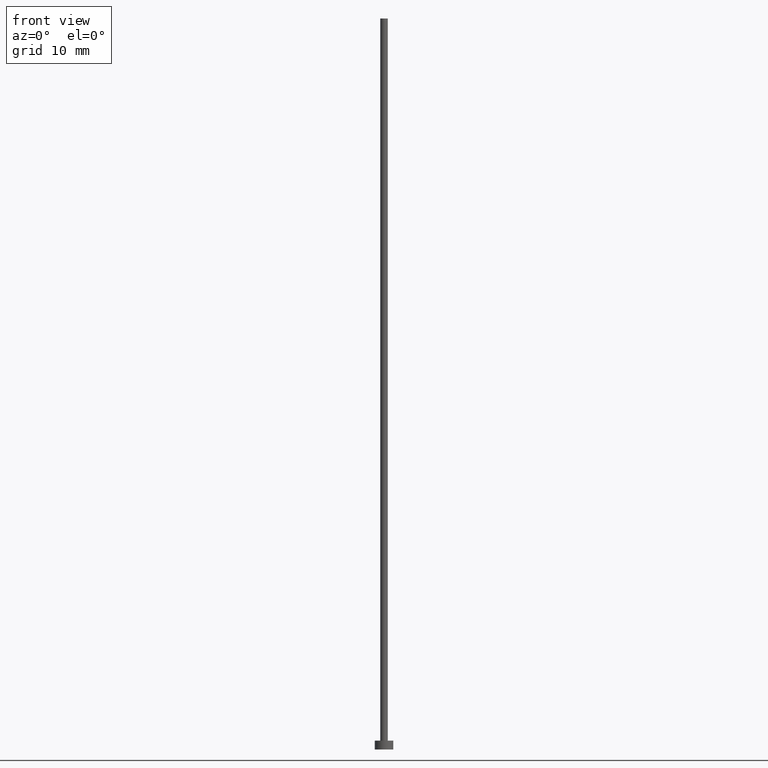
[diagram: clean part render]
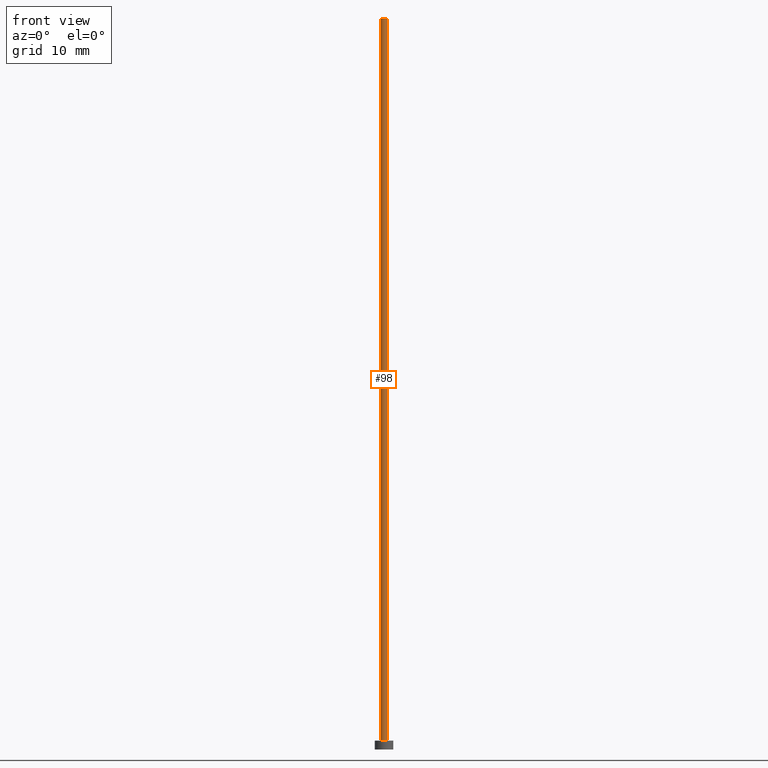
[diagram: same view with one face highlighted and labeled with its STEP entity id]
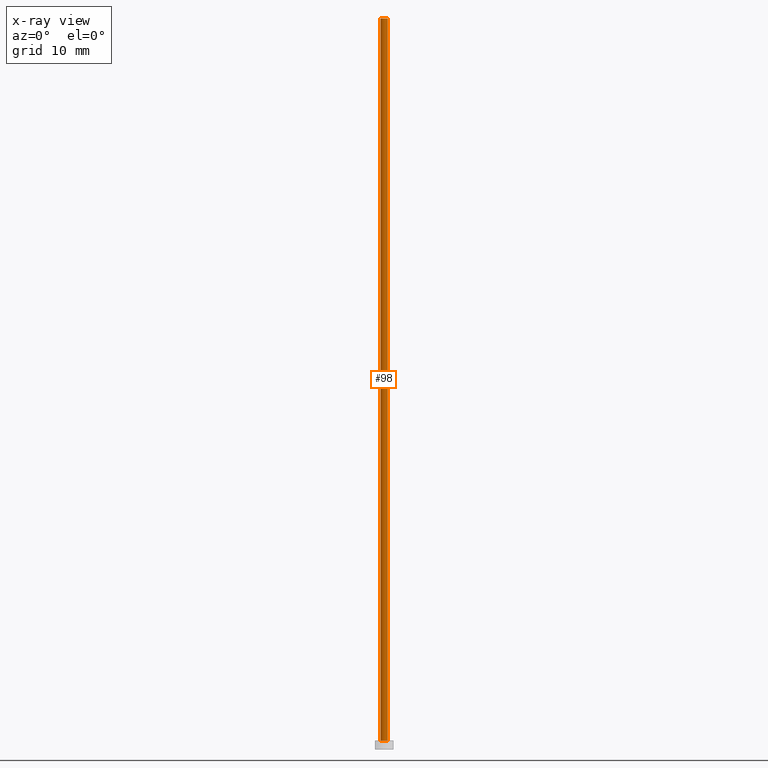
[diagram: x-ray of the same camera — body ghosted, the highlighted face saturated]
A machine part, front view. The second image highlights one B-rep face of the part: STEP entity #98.
The next image is the same camera in x-ray: the body ghosted, the highlighted face saturated — about 0% of this face is hidden behind the body in this view.
In plain terms, the highlighted cylindrical surface (edge-blend (fillet) strip) has radius 0.5 mm, axis along (-0, -0, -1).
Its self-contained STEP definition (entity closure, byte-faithful):
#8 = CARTESIAN_POINT ( 'NONE',  ( 0.000000000000000000, 0.000000000000000000, 99.00000000000000000 ) ) ;
#12 = CARTESIAN_POINT ( 'NONE',  ( 0.5000000000000000000, 6.123233995736766036E-17, 99.00000000000000000 ) ) ;
#30 = EDGE_LOOP ( 'NONE', ( #61, #32, #123, #64 ) ) ;
#31 = VECTOR ( 'NONE', #210, 1000.000000000000000 ) ;
#32 = ORIENTED_EDGE ( 'NONE', *, *, #73, .F. ) ;
#36 = DIRECTION ( 'NONE',  ( 0.000000000000000000, 0.000000000000000000, 1.000000000000000000 ) ) ;
#47 = FACE_OUTER_BOUND ( 'NONE', #30, .T. ) ;
#52 = VECTOR ( 'NONE', #185, 1000.000000000000000 ) ;
#56 = CIRCLE ( 'NONE', #142, 0.5000000000000000000 ) ;
#58 = VERTEX_POINT ( 'NONE', #177 ) ;
#61 = ORIENTED_EDGE ( 'NONE', *, *, #213, .F. ) ;
#64 = ORIENTED_EDGE ( 'NONE', *, *, #242, .T. ) ;
#67 = VERTEX_POINT ( 'NONE', #12 ) ;
#68 = VERTEX_POINT ( 'NONE', #141 ) ;
#73 = EDGE_CURVE ( 'NONE', #58, #67, #56, .T. ) ;
#74 = CARTESIAN_POINT ( 'NONE',  ( 0.5000000000000000000, 6.123233995736766036E-17, 99.00000000000000000 ) ) ;
#86 = DIRECTION ( 'NONE',  ( -0.000000000000000000, -0.000000000000000000, -1.000000000000000000 ) ) ;
#88 = DIRECTION ( 'NONE',  ( -1.000000000000000000, 0.000000000000000000, 0.000000000000000000 ) ) ;
#90 = AXIS2_PLACEMENT_3D ( 'NONE', #180, #86, #88 ) ;
#91 = DIRECTION ( 'NONE',  ( 1.000000000000000000, 0.000000000000000000, 0.000000000000000000 ) ) ;
#92 = AXIS2_PLACEMENT_3D ( 'NONE', #230, #36, #91 ) ;
#98 = ADVANCED_FACE ( 'NONE', ( #47 ), #122, .T. ) ;
#122 = CYLINDRICAL_SURFACE ( 'NONE', #90, 0.5000000000000000000 ) ;
#123 = ORIENTED_EDGE ( 'NONE', *, *, #192, .T. ) ;
#133 = CIRCLE ( 'NONE', #92, 0.5000000000000000000 ) ;
#141 = CARTESIAN_POINT ( 'NONE',  ( -0.5000000000000000000, 0.000000000000000000, 1.199999999999999956 ) ) ;
#142 = AXIS2_PLACEMENT_3D ( 'NONE', #8, #247, #224 ) ;
#147 = LINE ( 'NONE', #169, #52 ) ;
#169 = CARTESIAN_POINT ( 'NONE',  ( -0.5000000000000000000, 0.000000000000000000, 99.00000000000000000 ) ) ;
#177 = CARTESIAN_POINT ( 'NONE',  ( -0.5000000000000000000, 0.000000000000000000, 99.00000000000000000 ) ) ;
#180 = CARTESIAN_POINT ( 'NONE',  ( 0.000000000000000000, 0.000000000000000000, 99.00000000000000000 ) ) ;
#185 = DIRECTION ( 'NONE',  ( -0.000000000000000000, -0.000000000000000000, -1.000000000000000000 ) ) ;
#192 = EDGE_CURVE ( 'NONE', #58, #68, #147, .T. ) ;
#210 = DIRECTION ( 'NONE',  ( -0.000000000000000000, -0.000000000000000000, -1.000000000000000000 ) ) ;
#213 = EDGE_CURVE ( 'NONE', #67, #244, #250, .T. ) ;
#224 = DIRECTION ( 'NONE',  ( 1.000000000000000000, 0.000000000000000000, 0.000000000000000000 ) ) ;
#230 = CARTESIAN_POINT ( 'NONE',  ( 0.000000000000000000, 0.000000000000000000, 1.199999999999999956 ) ) ;
#231 = CARTESIAN_POINT ( 'NONE',  ( 0.5000000000000000000, 6.123233995736766036E-17, 1.199999999999999956 ) ) ;
#242 = EDGE_CURVE ( 'NONE', #68, #244, #133, .T. ) ;
#244 = VERTEX_POINT ( 'NONE', #231 ) ;
#247 = DIRECTION ( 'NONE',  ( 0.000000000000000000, 0.000000000000000000, 1.000000000000000000 ) ) ;
#250 = LINE ( 'NONE', #74, #31 ) ;